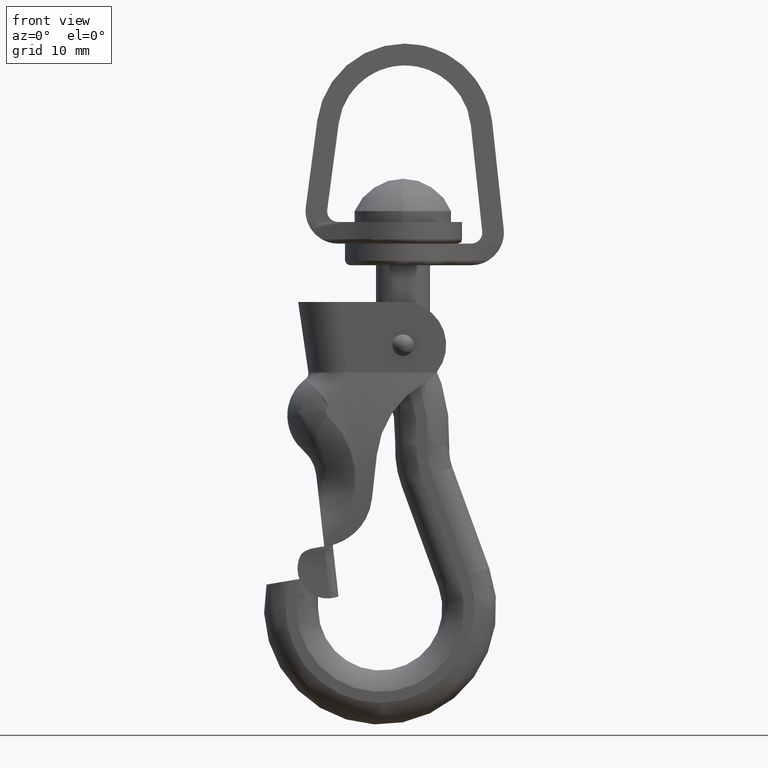
[diagram: clean part render]
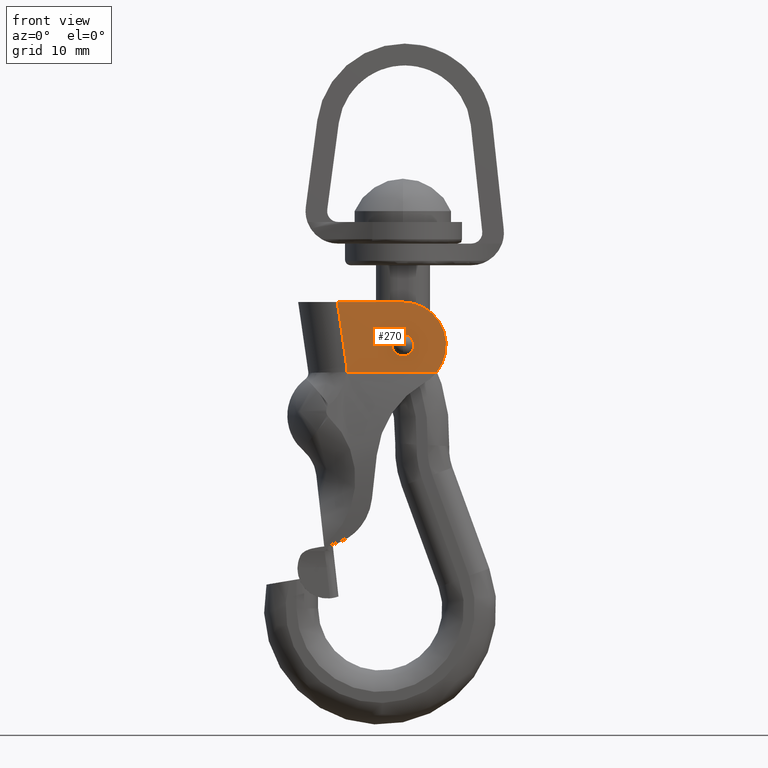
[diagram: same view with one face highlighted and labeled with its STEP entity id]
A machine part, front view. The second image highlights one B-rep face of the part: STEP entity #270.
In plain terms, the highlighted planar face has unit normal (0, 1, -0).
Its self-contained STEP definition (entity closure, byte-faithful):
#270=ADVANCED_FACE('',(#1528,#1529),#1527,.F.);
#1527=PLANE('',#3502);
#1528=FACE_OUTER_BOUND('',#3503,.T.);
#1529=FACE_BOUND('',#3504,.T.);
#3499=CARTESIAN_POINT('',(-8.96663627536E+00,-4.57698412699E+00,-3.92655861189E+00));
#3500=DIRECTION('',(0.00000000000E+00,1.00000000000E+00,-2.30241896648E-13));
#3501=DIRECTION('',(0.00000000000E+00,2.30241896648E-13,1.00000000000E+00));
#3502=AXIS2_PLACEMENT_3D('',#3499,#3500,#3501);
#3503=EDGE_LOOP('',(#4629,#4630,#4631,#4632,#4633));
#3504=EDGE_LOOP('',(#4634,#4635));
#4629=ORIENTED_EDGE('',*,*,#5210,.T.);
#4630=ORIENTED_EDGE('',*,*,#5211,.T.);
#4631=ORIENTED_EDGE('',*,*,#5200,.F.);
#4632=ORIENTED_EDGE('',*,*,#5212,.F.);
#4633=ORIENTED_EDGE('',*,*,#5131,.T.);
#4634=ORIENTED_EDGE('',*,*,#5213,.T.);
#4635=ORIENTED_EDGE('',*,*,#5214,.T.);
#5131=EDGE_CURVE('',#7228,#7221,#7229,.T.);
#5200=EDGE_CURVE('',#7688,#7689,#7690,.T.);
#5210=EDGE_CURVE('',#7221,#7756,#7757,.T.);
#5211=EDGE_CURVE('',#7756,#7689,#7763,.T.);
#5212=EDGE_CURVE('',#7228,#7688,#7769,.T.);
#5213=EDGE_CURVE('',#7775,#7776,#7777,.T.);
#5214=EDGE_CURVE('',#7776,#7775,#7783,.T.);
#7221=VERTEX_POINT('',#9660);
#7228=VERTEX_POINT('',#9664);
#7229=LINE('',#9665,#9666);
#7688=VERTEX_POINT('',#10177);
#7689=VERTEX_POINT('',#10178);
#7690=LINE('',#10179,#10180);
#7756=VERTEX_POINT('',#10224);
#7757=LINE('',#10225,#10226);
#7763=CIRCLE('',#10231,5.37777777778E+00);
#7769=CIRCLE('',#10235,5.01587301587E+00);
#7775=VERTEX_POINT('',#10236);
#7776=VERTEX_POINT('',#10237);
#7777=CIRCLE('',#10241,1.25396825397E+00);
#7783=CIRCLE('',#10245,1.25396825397E+00);
#9660=CARTESIAN_POINT('',(-7.61647866865E+00,-4.57698412698E+00,5.01587301587E+00));
#9664=CARTESIAN_POINT('',(8.77151685963E-14,-4.57698412698E+00,5.01587301587E+00));
#9665=CARTESIAN_POINT('',(8.88178419700E-14,-4.57698412698E+00,5.01587301587E+00));
#9666=VECTOR('',#9667,7.61647866865E+00);
#9667=DIRECTION('',(-1.00000000000E+00,0.00000000000E+00,2.40222237097E-14));
#10177=CARTESIAN_POINT('',(3.93248180194E+00,-4.57698412699E+00,-3.11361028209E+00));
#10178=CARTESIAN_POINT('',(-6.47935634838E+00,-4.57698412699E+00,-3.11193288422E+00));
#10179=CARTESIAN_POINT('',(3.93248180194E+00,-4.57698412699E+00,-3.11361028209E+00));
#10180=VECTOR('',#10181,1.04118381503E+01);
#10181=DIRECTION('',(-1.00000000000E+00,0.00000000000E+00,0.00000000000E+00));
#10224=CARTESIAN_POINT('',(-6.53374200625E+00,-4.57698412699E+00,-2.45500995470E+00));
#10225=CARTESIAN_POINT('',(-7.61647866865E+00,-4.57698412698E+00,5.01587301587E+00));
#10226=VECTOR('',#10227,7.54893443077E+00);
#10227=DIRECTION('',(1.43429072319E-01,-2.27899926107E-13,-9.89660599000E-01));
#10228=CARTESIAN_POINT('',(-1.18559167831E+01,-4.57698412699E+00,-3.22633963250E+00));
#10229=DIRECTION('',(0.00000000000E+00,1.00000000000E+00,-2.30241896648E-13));
#10230=DIRECTION('',(-0.00000000000E+00,-2.30241896648E-13,-1.00000000000E+00));
#10231=AXIS2_PLACEMENT_3D('',#10228,#10229,#10230);
#10232=CARTESIAN_POINT('',(-2.84217094304E-14,-4.57698412699E+00,-1.13686837722E-13));
#10233=DIRECTION('',(0.00000000000E+00,1.00000000000E+00,-2.30241896648E-13));
#10234=DIRECTION('',(-0.00000000000E+00,-2.30241896648E-13,-1.00000000000E+00));
#10235=AXIS2_PLACEMENT_3D('',#10232,#10233,#10234);
#10236=CARTESIAN_POINT('',(0.00000000000E+00,-4.57698412698E+00,1.25396825397E+00));
#10237=CARTESIAN_POINT('',(7.40148683083E-17,-4.57698412698E+00,-1.25396825397E+00));
#10238=CARTESIAN_POINT('',(0.00000000000E+00,-4.57698412698E+00,5.68434188608E-14));
#10239=DIRECTION('',(0.00000000000E+00,1.00000000000E+00,-0.00000000000E+00));
#10240=DIRECTION('',(-1.22460635382E-16,0.00000000000E+00,1.00000000000E+00));
#10241=AXIS2_PLACEMENT_3D('',#10238,#10239,#10240);
#10242=CARTESIAN_POINT('',(0.00000000000E+00,-4.57698412698E+00,5.68434188608E-14));
#10243=DIRECTION('',(0.00000000000E+00,1.00000000000E+00,-0.00000000000E+00));
#10244=DIRECTION('',(-1.22460635382E-16,0.00000000000E+00,1.00000000000E+00));
#10245=AXIS2_PLACEMENT_3D('',#10242,#10243,#10244);